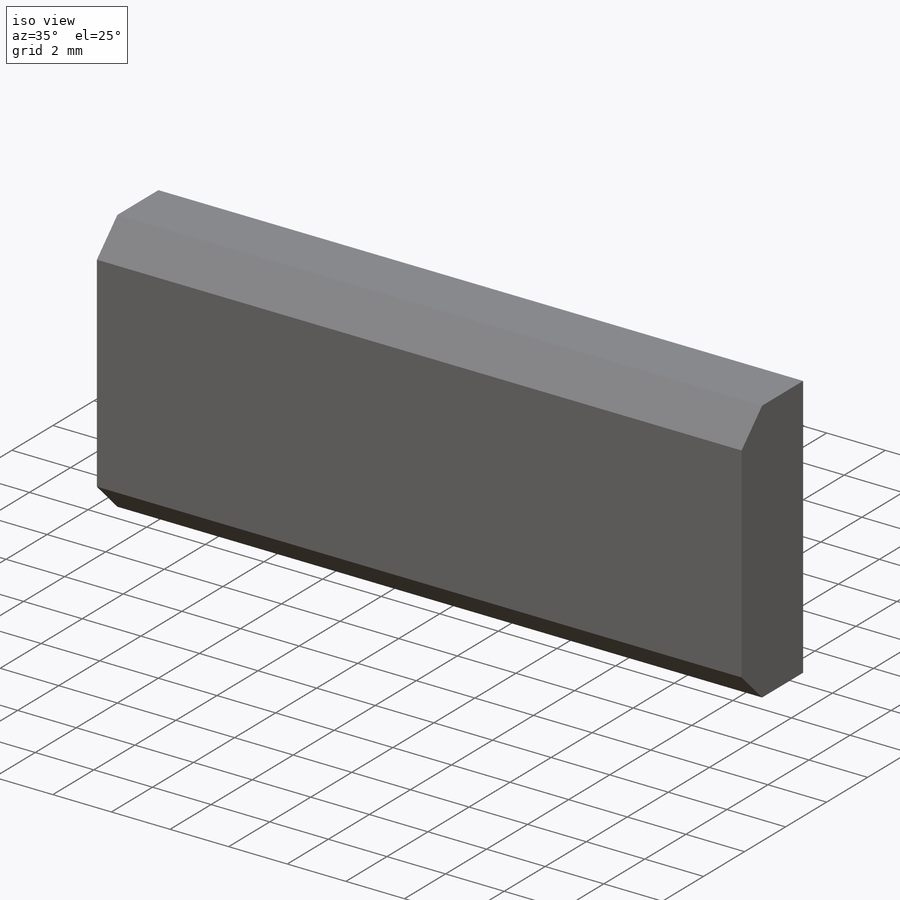
[diagram: iso view]
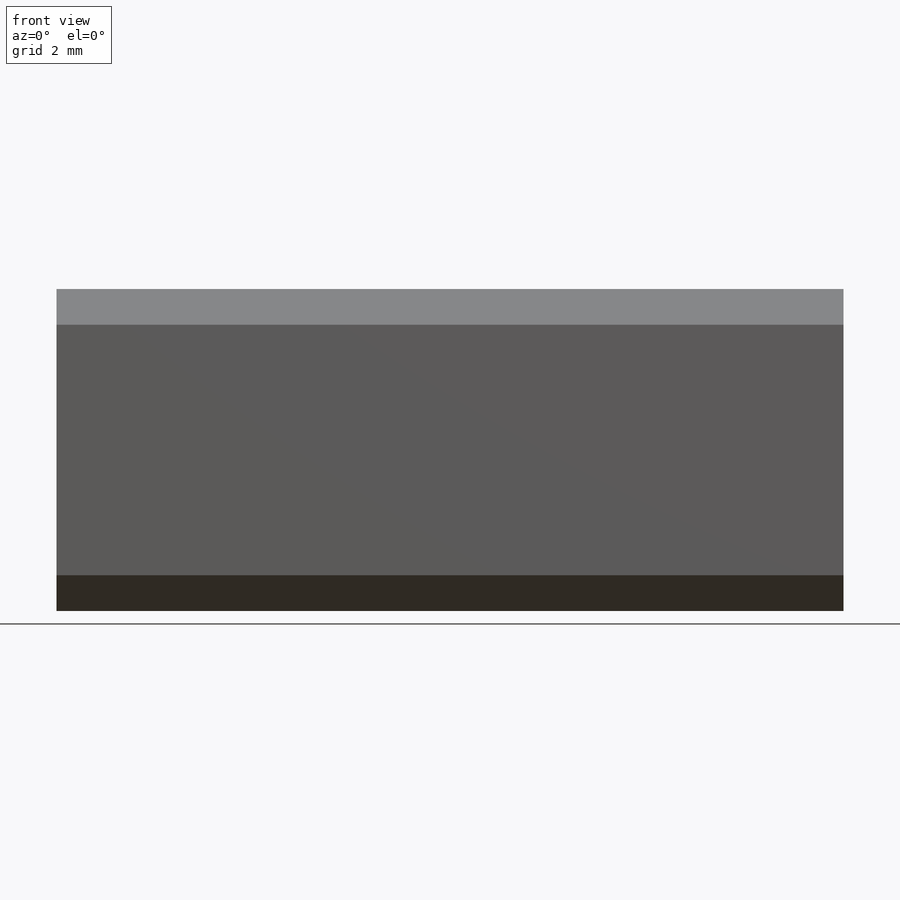
[diagram: front view]
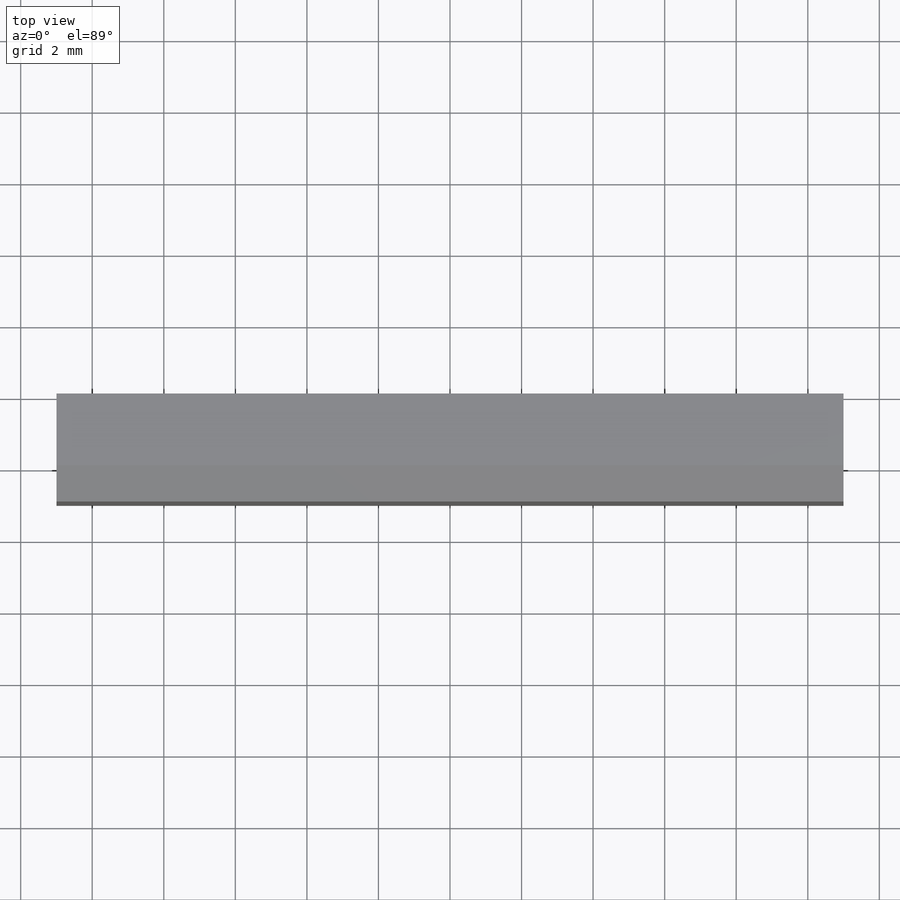
[diagram: top view]
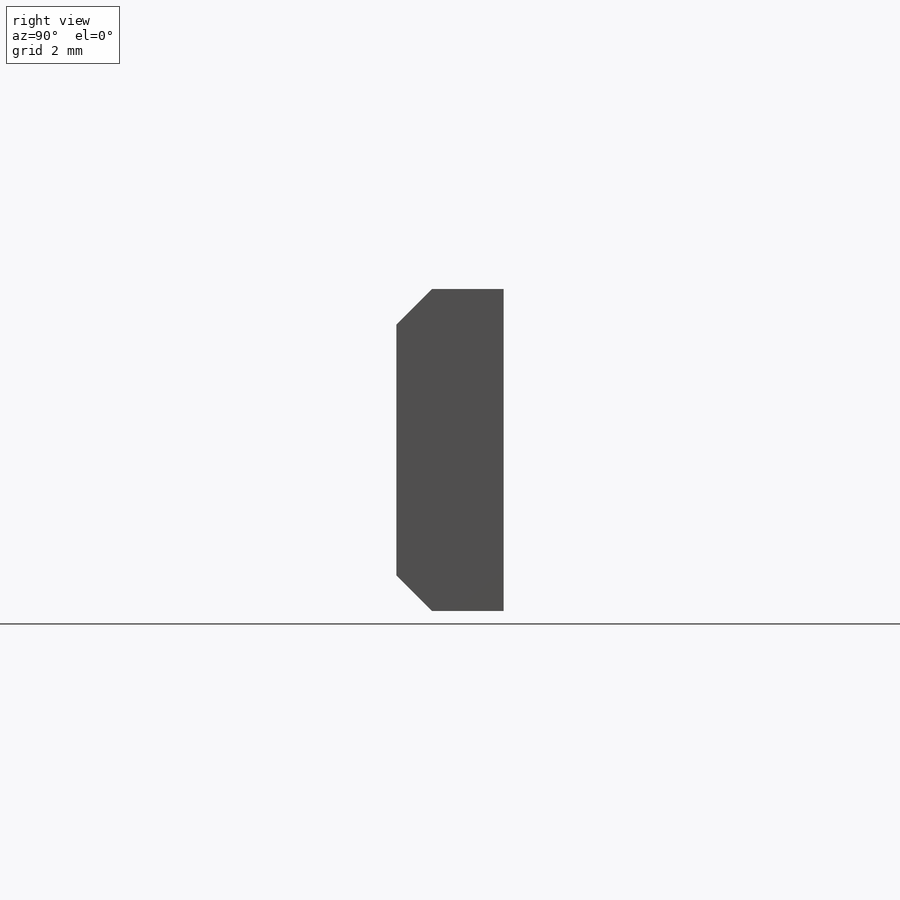
[diagram: right view]
SOLIDWORKS PART (.sldprt)
format: sldprt  version: not decoded by parser v0  size: 134,656 bytes
history: native  units: mm
features: chamfer x8, material x1, sketch x1, extrude x1 (+14 scaffold rows collapsed)
feature tree (25):
  scaffold x14  (default folders/planes/origin — collapsed)
  material  "Стекло"
  sketch  "Эскиз1"  dims[D1=22.0mm D2=9.0mm D3=4.5mm D4=11.0mm]
  extrude  "Вытянуть1"  Depth=3mm
  chamfer  "Фаска1"  Distance=1mm Angle=45deg Material_Int=0deg Material_Ext=0deg Surface=0deg
  chamfer  "OptisFaceAttribut_1"  Angle=0deg Surface=0deg Material_Int=0deg Material_Ext=0deg  [1 undecoded]
  chamfer  "OptisFaceAttribut_2"  Angle=0deg Surface=0deg Material_Int=0deg Material_Ext=0deg  [1 undecoded]
  chamfer  "OptisFaceAttribut_3"  Angle=0deg Surface=0deg Material_Int=0deg Material_Ext=0deg  [1 undecoded]
  chamfer  "OptisFaceAttribut_4"  Angle=0deg Surface=0deg Material_Int=0deg Material_Ext=0deg  [1 undecoded]
  chamfer  "OptisFaceAttribut_5"  Angle=0deg Surface=0deg Material_Int=0deg Material_Ext=0deg  [1 undecoded]
  chamfer  "OptisFaceAttribut_6"  Angle=0deg Surface=0deg Material_Int=0deg Material_Ext=0deg  [1 undecoded]
  chamfer  "OptisFaceAttribut_7"  Angle=0deg Surface=0deg Material_Int=0deg Material_Ext=0deg  [1 undecoded]
decode coverage: 10 of 10 modeling features carry decoded parameters
note: 7 parameter values undecoded
summary: no parameter record found for 7 features
note: suppression state not decoded; provenance and decode notes live in map.json
